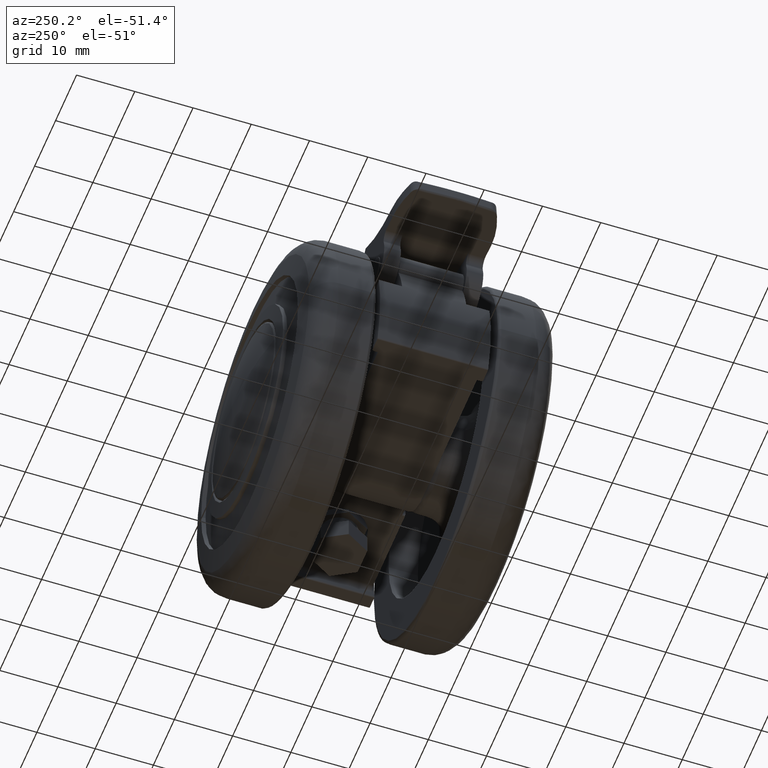
[diagram: clean part render]
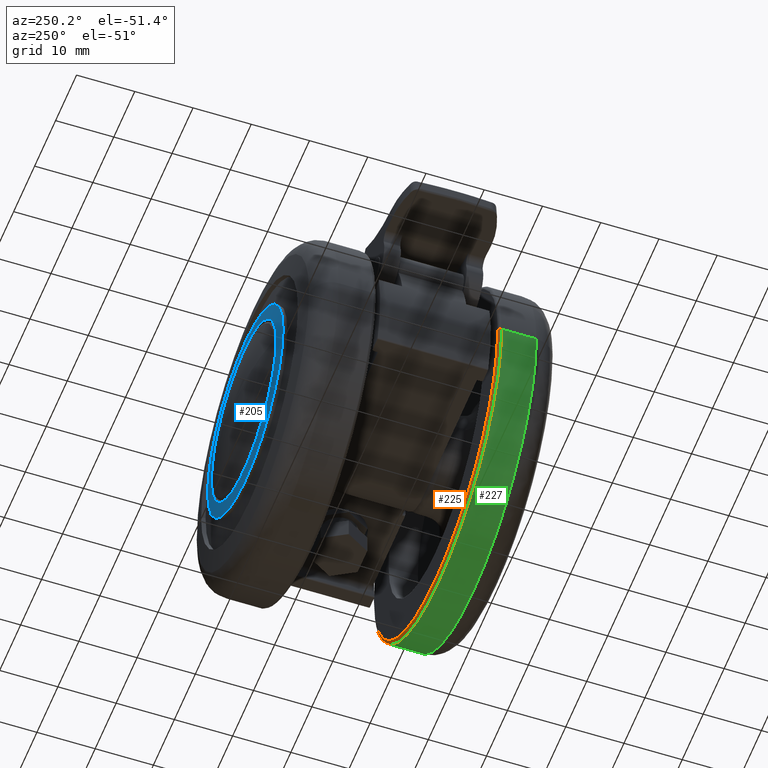
[diagram: same view with three faces highlighted in distinct colors, each labeled with its STEP entity id]
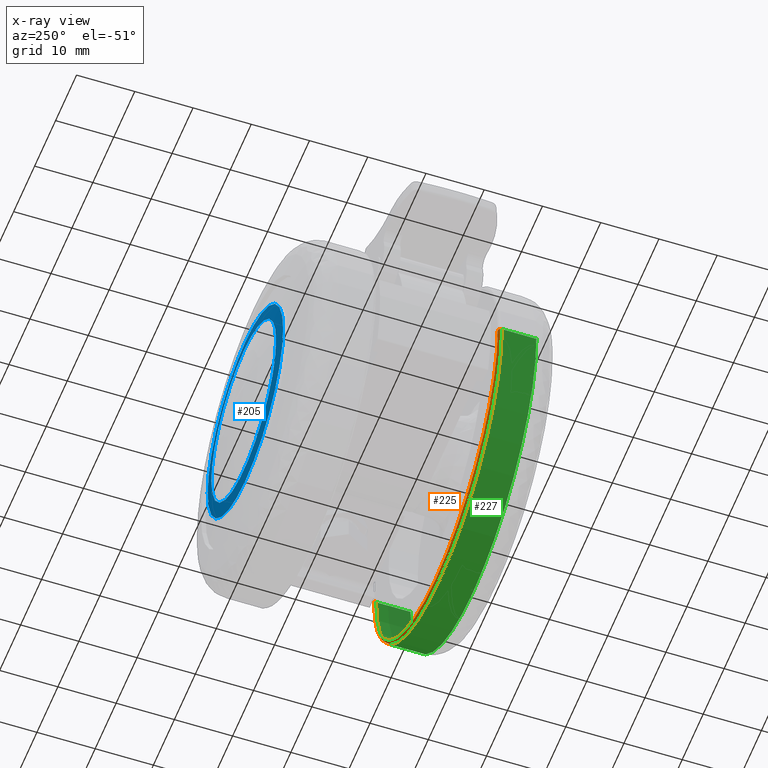
[diagram: x-ray of the same camera — body ghosted, the three highlighted faces saturated]
A machine part, auxiliary view with three faces highlighted in distinct colors.
The next image is the same camera in x-ray (body ghosted, the three faces saturated) — at least one of them is partly hidden behind the body in this view.
Their STEP definitions:

[orange] entity #225 — the highlighted face is a freeform B-spline surface patch.
#225=ADVANCED_FACE('',(#724),#723,.T.);
#723=( BOUNDED_SURFACE() B_SPLINE_SURFACE( 2,2,((#3463,#3464,#3465,#3466,#3467),(#3468,#3469,#3470,#3471,#3472),(#3473,#3474,#3475,#3476,#3477),(#3478,#3479,#3480,#3481,#3482),(#3483,#3484,#3485,#3486,#3487)), .UNSPECIFIED.,.F.,.F.,.F.) B_SPLINE_SURFACE_WITH_KNOTS((3,2,3),(3,2,3),(0.00000000000E+00,5.00000000000E-01,1.00000000000E+00),(0.00000000000E+00,5.00000000000E-01,1.00000000000E+00), .UNSPECIFIED. ) GEOMETRIC_REPRESENTATION_ITEM() RATIONAL_B_SPLINE_SURFACE(((1.00000000000E+00,7.07106781187E-01,1.00000000000E+00,7.07106781187E-01,1.00000000000E+00),(7.07106781187E-01,5.00000000000E-01,7.07106781187E-01,5.00000000000E-01,7.07106781187E-01),(1.00000000000E+00,7.07106781187E-01,1.00000000000E+00,7.07106781187E-01,1.00000000000E+00),(7.07106781187E-01,5.00000000000E-01,7.07106781187E-01,5.00000000000E-01,7.07106781187E-01),(1.00000000000E+00,7.07106781187E-01,1.00000000000E+00,7.07106781187E-01,1.00000000000E+00))) REPRESENTATION_ITEM('') SURFACE() );
#724=FACE_OUTER_BOUND('',#3488,.T.);
#3463=CARTESIAN_POINT('',(-2.90000000000E+01,-3.55135842608E-15,2.50000000000E+00));
#3464=CARTESIAN_POINT('',(-2.90000000000E+01,-3.55135842608E-15,2.00000000000E+00));
#3465=CARTESIAN_POINT('',(-2.95000000000E+01,-3.61258874378E-15,2.00000000000E+00));
#3466=CARTESIAN_POINT('',(-3.00000000000E+01,-3.67381906147E-15,2.00000000000E+00));
#3467=CARTESIAN_POINT('',(-3.00000000000E+01,-3.67381906147E-15,2.50000000000E+00));
#3468=CARTESIAN_POINT('',(-2.90000000000E+01,-2.90000000000E+01,2.50000000000E+00));
#3469=CARTESIAN_POINT('',(-2.90000000000E+01,-2.90000000000E+01,2.00000000000E+00));
#3470=CARTESIAN_POINT('',(-2.95000000000E+01,-2.95000000000E+01,2.00000000000E+00));
#3471=CARTESIAN_POINT('',(-3.00000000000E+01,-3.00000000000E+01,2.00000000000E+00));
#3472=CARTESIAN_POINT('',(-3.00000000000E+01,-3.00000000000E+01,2.50000000000E+00));
#3473=CARTESIAN_POINT('',(1.77562056732E-15,-2.90000000000E+01,2.50000000000E+00));
#3474=CARTESIAN_POINT('',(1.77562056732E-15,-2.90000000000E+01,2.00000000000E+00));
#3475=CARTESIAN_POINT('',(1.80623471503E-15,-2.95000000000E+01,2.00000000000E+00));
#3476=CARTESIAN_POINT('',(1.83684886275E-15,-3.00000000000E+01,2.00000000000E+00));
#3477=CARTESIAN_POINT('',(1.83684886275E-15,-3.00000000000E+01,2.50000000000E+00));
#3478=CARTESIAN_POINT('',(2.90000000000E+01,-2.90000000000E+01,2.50000000000E+00));
#3479=CARTESIAN_POINT('',(2.90000000000E+01,-2.90000000000E+01,2.00000000000E+00));
#3480=CARTESIAN_POINT('',(2.95000000000E+01,-2.95000000000E+01,2.00000000000E+00));
#3481=CARTESIAN_POINT('',(3.00000000000E+01,-3.00000000000E+01,2.00000000000E+00));
#3482=CARTESIAN_POINT('',(3.00000000000E+01,-3.00000000000E+01,2.50000000000E+00));
#3483=CARTESIAN_POINT('',(2.90000000000E+01,-1.17291442430E-19,2.50000000000E+00));
#3484=CARTESIAN_POINT('',(2.90000000000E+01,-1.17291442430E-19,2.00000000000E+00));
#3485=CARTESIAN_POINT('',(2.95000000000E+01,-1.19313708679E-19,2.00000000000E+00));
#3486=CARTESIAN_POINT('',(3.00000000000E+01,-1.21335974928E-19,2.00000000000E+00));
#3487=CARTESIAN_POINT('',(3.00000000000E+01,-1.21335974927E-19,2.50000000000E+00));
#3488=EDGE_LOOP('',(#5925,#5926,#5927,#5928));
#5925=ORIENTED_EDGE('',*,*,#7014,.F.);
#5926=ORIENTED_EDGE('',*,*,#7015,.F.);
#5927=ORIENTED_EDGE('',*,*,#6953,.F.);
#5928=ORIENTED_EDGE('',*,*,#7016,.T.);
#6953=EDGE_CURVE('',#7625,#7626,#7627,.T.);
#7014=EDGE_CURVE('',#8031,#8032,#8033,.T.);
#7015=EDGE_CURVE('',#7626,#8031,#8039,.T.);
#7016=EDGE_CURVE('',#7625,#8032,#8045,.T.);
#7625=VERTEX_POINT('',#11408);
#7626=VERTEX_POINT('',#11409);
#7627=CIRCLE('',#11413,2.95000000000E+01);
#8031=VERTEX_POINT('',#11674);
#8032=VERTEX_POINT('',#11675);
#8033=CIRCLE('',#11679,3.00000000000E+01);
#8039=(BOUNDED_CURVE() B_SPLINE_CURVE(2,(#11680,#11681,#11682),.UNSPECIFIED.,.F.,.F.) B_SPLINE_CURVE_WITH_KNOTS((3,3),(5.00000000000E-01,1.00000000000E+00),.UNSPECIFIED.) CURVE() GEOMETRIC_REPRESENTATION_ITEM() RATIONAL_B_SPLINE_CURVE((1.00000000000E+00,7.07106781187E-01,1.00000000000E+00)) REPRESENTATION_ITEM('') );
#8045=(BOUNDED_CURVE() B_SPLINE_CURVE(3,(#11683,#11684,#11685,#11686),.UNSPECIFIED.,.F.,.F.) B_SPLINE_CURVE_WITH_KNOTS((4,4),(4.99998681775E-01,1.00000000000E+00),.UNSPECIFIED.) CURVE() GEOMETRIC_REPRESENTATION_ITEM() RATIONAL_B_SPLINE_CURVE((1.00000000000E+00,1.00000000000E+00,1.00000000000E+00,1.00000000000E+00)) REPRESENTATION_ITEM('') );
#11408=CARTESIAN_POINT('',(2.95000000000E+01,-3.07354836874E-17,2.00000000000E+00));
#11409=CARTESIAN_POINT('',(-2.95000000000E+01,-8.28966525053E-15,2.00000000000E+00));
#11410=CARTESIAN_POINT('',(0.00000000000E+00,0.00000000000E+00,2.00000000000E+00));
#11411=DIRECTION('',(0.00000000000E+00,0.00000000000E+00,-1.00000000000E+00));
#11412=DIRECTION('',(1.00000000000E+00,-1.23502516185E-16,-0.00000000000E+00));
#11413=AXIS2_PLACEMENT_3D('',#11410,#11411,#11412);
#11674=CARTESIAN_POINT('',(-3.00000000000E+01,2.36847578587E-15,2.50000000000E+00));
#11675=CARTESIAN_POINT('',(3.00000000000E+01,0.00000000000E+00,2.50000000000E+00));
#11676=CARTESIAN_POINT('',(0.00000000000E+00,0.00000000000E+00,2.50000000000E+00));
#11677=DIRECTION('',(0.00000000000E+00,0.00000000000E+00,1.00000000000E+00));
#11678=DIRECTION('',(1.00000000000E+00,-1.22460635382E-16,0.00000000000E+00));
#11679=AXIS2_PLACEMENT_3D('',#11676,#11677,#11678);
#11680=CARTESIAN_POINT('',(-2.95000000000E+01,-3.61258874378E-15,2.00000000000E+00));
#11681=CARTESIAN_POINT('',(-3.00000000000E+01,-3.67381906147E-15,2.00000000000E+00));
#11682=CARTESIAN_POINT('',(-3.00000000000E+01,-3.67381906147E-15,2.50000000000E+00));
#11683=CARTESIAN_POINT('',(2.94999981357E+01,4.73694639872E-15,2.00000000000E+00));
#11684=CARTESIAN_POINT('',(2.98047369532E+01,3.97070011560E-15,2.02859457831E+00));
#11685=CARTESIAN_POINT('',(2.99714042413E+01,3.97070183994E-15,2.19526124498E+00));
#11686=CARTESIAN_POINT('',(3.00000000000E+01,4.73695157173E-15,2.50000000000E+00));

[blue] entity #205 — the highlighted spherical surface has radius 150 mm.
#205=ADVANCED_FACE('',(#523,#524),#522,.T.);
#522=SPHERICAL_SURFACE('',#3107,1.50000000000E+02);
#523=FACE_OUTER_BOUND('',#3108,.T.);
#524=FACE_BOUND('',#3109,.T.);
#3104=CARTESIAN_POINT('',(0.00000000000E+00,0.00000000000E+00,-1.35210000000E+02));
#3105=DIRECTION('',(-1.00000000000E+00,0.00000000000E+00,0.00000000000E+00));
#3106=DIRECTION('',(-0.00000000000E+00,-1.20000000000E-01,9.92773891679E-01));
#3107=AXIS2_PLACEMENT_3D('',#3104,#3105,#3106);
#3108=EDGE_LOOP('',(#5837,#5838));
#3109=EDGE_LOOP('',(#5839,#5840,#5841));
#5837=ORIENTED_EDGE('',*,*,#6978,.T.);
#5838=ORIENTED_EDGE('',*,*,#6979,.T.);
#5839=ORIENTED_EDGE('',*,*,#6980,.T.);
#5840=ORIENTED_EDGE('',*,*,#6981,.T.);
#5841=ORIENTED_EDGE('',*,*,#6982,.T.);
#6978=EDGE_CURVE('',#7800,#7801,#7802,.T.);
#6979=EDGE_CURVE('',#7801,#7800,#7808,.T.);
#6980=EDGE_CURVE('',#7814,#7815,#7816,.T.);
#6981=EDGE_CURVE('',#7815,#7822,#7823,.T.);
#6982=EDGE_CURVE('',#7822,#7814,#7829,.T.);
#7800=VERTEX_POINT('',#11533);
#7801=VERTEX_POINT('',#11534);
#7802=CIRCLE('',#11538,1.80000000000E+01);
#7808=CIRCLE('',#11542,1.80000000000E+01);
#7814=VERTEX_POINT('',#11543);
#7815=VERTEX_POINT('',#11544);
#7816=CIRCLE('',#11548,1.54308617234E+01);
#7822=VERTEX_POINT('',#11549);
#7823=CIRCLE('',#11553,1.54308617234E+01);
#7829=CIRCLE('',#11557,1.54308617234E+01);
#11533=CARTESIAN_POINT('',(1.80000000000E+01,-4.40865567535E-15,1.37060837519E+01));
#11534=CARTESIAN_POINT('',(-1.80000000000E+01,1.18423789293E-15,1.37060837519E+01));
#11535=CARTESIAN_POINT('',(0.00000000000E+00,0.00000000000E+00,1.37060837519E+01));
#11536=DIRECTION('',(0.00000000000E+00,0.00000000000E+00,1.00000000000E+00));
#11537=DIRECTION('',(1.00000000000E+00,-1.22464679915E-16,-0.00000000000E+00));
#11538=AXIS2_PLACEMENT_3D('',#11535,#11536,#11537);
#11539=CARTESIAN_POINT('',(0.00000000000E+00,0.00000000000E+00,1.37060837519E+01));
#11540=DIRECTION('',(0.00000000000E+00,0.00000000000E+00,1.00000000000E+00));
#11541=DIRECTION('',(1.00000000000E+00,-1.22464679915E-16,-0.00000000000E+00));
#11542=AXIS2_PLACEMENT_3D('',#11539,#11540,#11541);
#11543=CARTESIAN_POINT('',(1.88967313115E-15,-1.54308617234E+01,1.39941839443E+01));
#11544=CARTESIAN_POINT('',(-1.54308616403E+01,1.60142647471E-03,1.39941839443E+01));
#11545=CARTESIAN_POINT('',(0.00000000000E+00,0.00000000000E+00,1.39941839443E+01));
#11546=DIRECTION('',(0.00000000000E+00,0.00000000000E+00,-1.00000000000E+00));
#11547=DIRECTION('',(-0.00000000000E+00,-1.00000000000E+00,-0.00000000000E+00));
#11548=AXIS2_PLACEMENT_3D('',#11545,#11546,#11547);
#11549=CARTESIAN_POINT('',(1.54308617234E+01,-5.40735557049E-10,1.39941839443E+01));
#11550=CARTESIAN_POINT('',(0.00000000000E+00,0.00000000000E+00,1.39941839443E+01));
#11551=DIRECTION('',(0.00000000000E+00,0.00000000000E+00,-1.00000000000E+00));
#11552=DIRECTION('',(-0.00000000000E+00,-1.00000000000E+00,-0.00000000000E+00));
#11553=AXIS2_PLACEMENT_3D('',#11550,#11551,#11552);
#11554=CARTESIAN_POINT('',(0.00000000000E+00,0.00000000000E+00,1.39941839443E+01));
#11555=DIRECTION('',(0.00000000000E+00,0.00000000000E+00,-1.00000000000E+00));
#11556=DIRECTION('',(-0.00000000000E+00,-1.00000000000E+00,-0.00000000000E+00));
#11557=AXIS2_PLACEMENT_3D('',#11554,#11555,#11556);

[green] entity #227 — the highlighted cylindrical surface (partial cylindrical patch) has radius 30 mm, axis along (-0, 1, -0).
#227=ADVANCED_FACE('',(#744),#743,.T.);
#743=CYLINDRICAL_SURFACE('',#3518,3.00000000000E+01);
#744=FACE_OUTER_BOUND('',#3519,.T.);
#3515=CARTESIAN_POINT('',(0.00000000000E+00,0.00000000000E+00,5.47813987732E+00));
#3516=DIRECTION('',(-0.00000000000E+00,-0.00000000000E+00,-1.00000000000E+00));
#3517=DIRECTION('',(1.00000000000E+00,1.22464679915E-16,0.00000000000E+00));
#3518=AXIS2_PLACEMENT_3D('',#3515,#3516,#3517);
#3519=EDGE_LOOP('',(#5933,#5934,#5935,#5936));
#5933=ORIENTED_EDGE('',*,*,#7014,.T.);
#5934=ORIENTED_EDGE('',*,*,#7018,.F.);
#5935=ORIENTED_EDGE('',*,*,#7019,.T.);
#5936=ORIENTED_EDGE('',*,*,#7020,.T.);
#7014=EDGE_CURVE('',#8031,#8032,#8033,.T.);
#7018=EDGE_CURVE('',#8057,#8032,#8058,.T.);
#7019=EDGE_CURVE('',#8057,#8064,#8065,.T.);
#7020=EDGE_CURVE('',#8064,#8031,#8071,.T.);
#8031=VERTEX_POINT('',#11674);
#8032=VERTEX_POINT('',#11675);
#8033=CIRCLE('',#11679,3.00000000000E+01);
#8057=VERTEX_POINT('',#11691);
#8058=(BOUNDED_CURVE() B_SPLINE_CURVE(1,(#11692,#11693),.UNSPECIFIED.,.F.,.F.) B_SPLINE_CURVE_WITH_KNOTS((2,2),(8.33333347523E-02,9.16666668865E-01),.UNSPECIFIED.) CURVE() GEOMETRIC_REPRESENTATION_ITEM() RATIONAL_B_SPLINE_CURVE((1.00000000000E+00,1.00000000000E+00)) REPRESENTATION_ITEM('') );
#8064=VERTEX_POINT('',#11694);
#8065=CIRCLE('',#11698,3.00000000000E+01);
#8071=(BOUNDED_CURVE() B_SPLINE_CURVE(1,(#11699,#11700),.UNSPECIFIED.,.F.,.F.) B_SPLINE_CURVE_WITH_KNOTS((2,2),(8.33333333333E-02,9.16666666667E-01),.UNSPECIFIED.) CURVE() GEOMETRIC_REPRESENTATION_ITEM() RATIONAL_B_SPLINE_CURVE((7.50000000000E-01,7.50000000000E-01)) REPRESENTATION_ITEM('') );
#11674=CARTESIAN_POINT('',(-3.00000000000E+01,2.36847578587E-15,2.50000000000E+00));
#11675=CARTESIAN_POINT('',(3.00000000000E+01,0.00000000000E+00,2.50000000000E+00));
#11676=CARTESIAN_POINT('',(0.00000000000E+00,0.00000000000E+00,2.50000000000E+00));
#11677=DIRECTION('',(0.00000000000E+00,0.00000000000E+00,1.00000000000E+00));
#11678=DIRECTION('',(1.00000000000E+00,-1.22460635382E-16,0.00000000000E+00));
#11679=AXIS2_PLACEMENT_3D('',#11676,#11677,#11678);
#11691=CARTESIAN_POINT('',(3.00000000000E+01,-2.36847578587E-15,8.45627996854E+00));
#11692=CARTESIAN_POINT('',(3.00000000000E+01,3.67394039744E-15,8.45627995840E+00));
#11693=CARTESIAN_POINT('',(3.00000000000E+01,3.67394039744E-15,2.49999998428E+00));
#11694=CARTESIAN_POINT('',(-3.00000000000E+01,3.67394039744E-15,8.45627996854E+00));
#11695=CARTESIAN_POINT('',(0.00000000000E+00,0.00000000000E+00,8.45627996854E+00));
#11696=DIRECTION('',(0.00000000000E+00,0.00000000000E+00,-1.00000000000E+00));
#11697=DIRECTION('',(-1.00000000000E+00,4.04453249757E-21,0.00000000000E+00));
#11698=AXIS2_PLACEMENT_3D('',#11695,#11696,#11697);
#11699=CARTESIAN_POINT('',(-3.00000000000E+01,-3.55271367880E-15,8.45627996854E+00));
#11700=CARTESIAN_POINT('',(-3.00000000000E+01,-3.55271367880E-15,2.50000000000E+00));